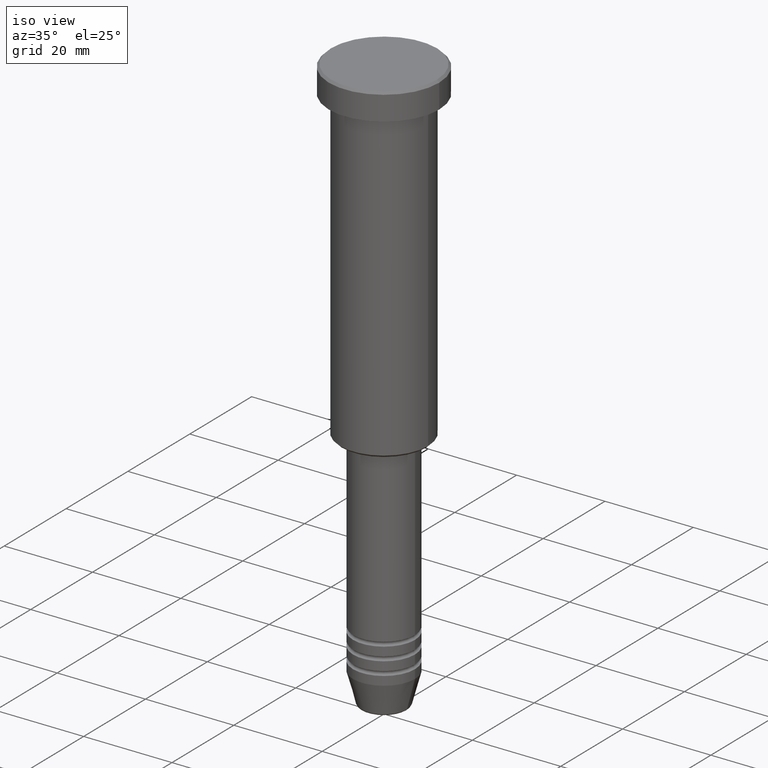
[diagram: clean part render]
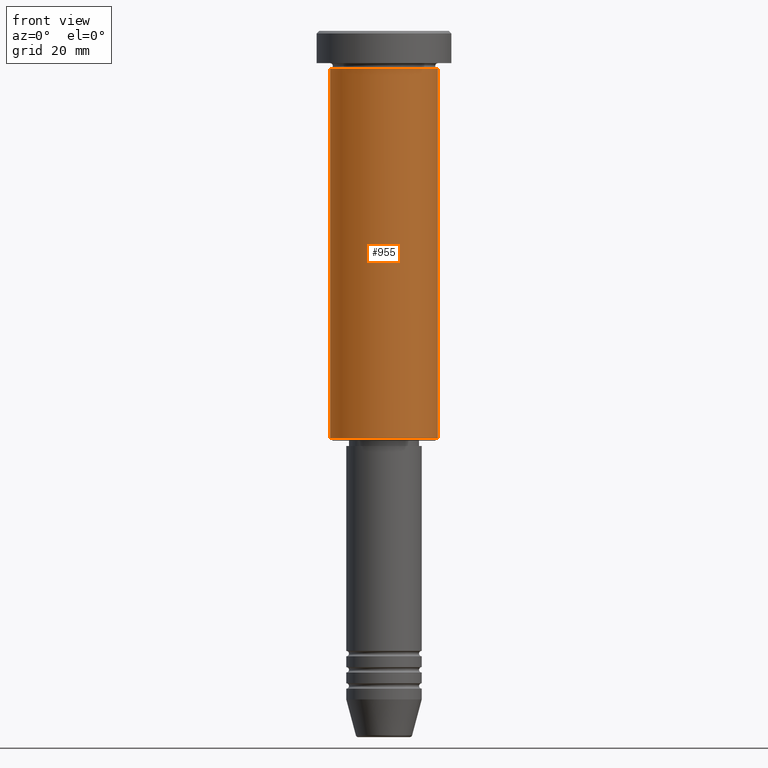
[diagram: tour spotlight — one face highlighted and labeled with its STEP entity id]
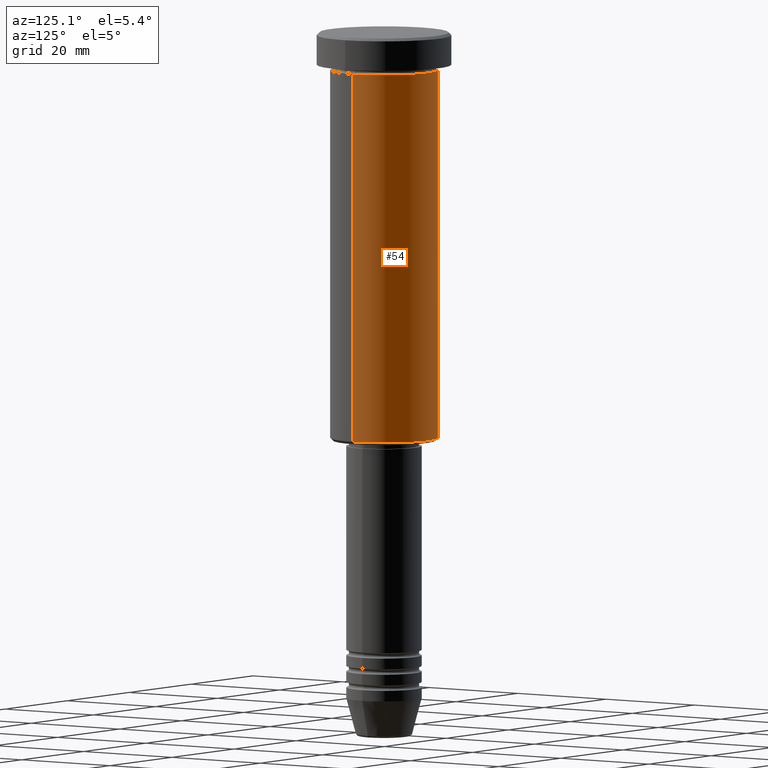
[diagram: tour spotlight — one face highlighted and labeled with its STEP entity id]
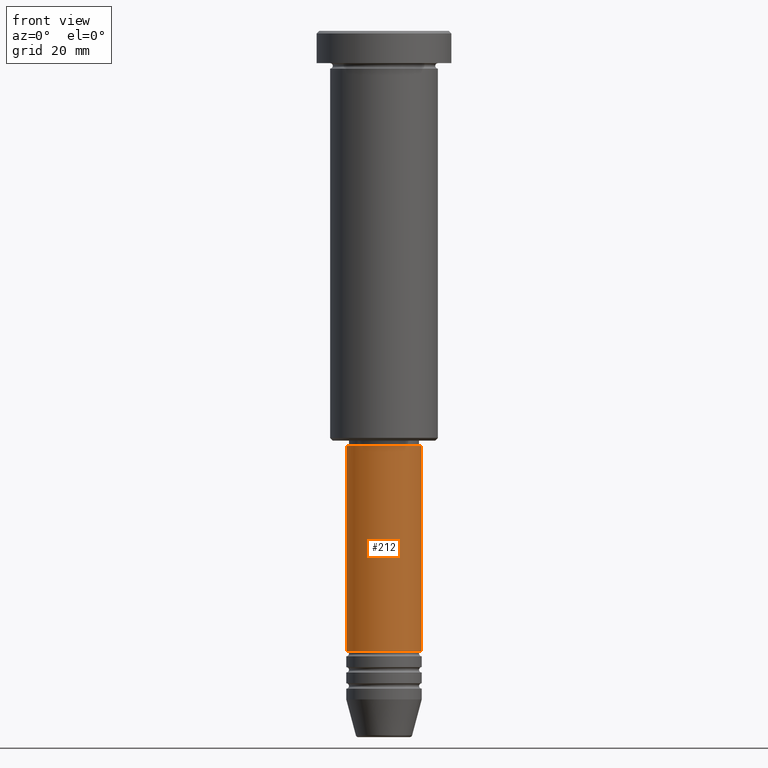
[diagram: tour spotlight — one face highlighted and labeled with its STEP entity id]
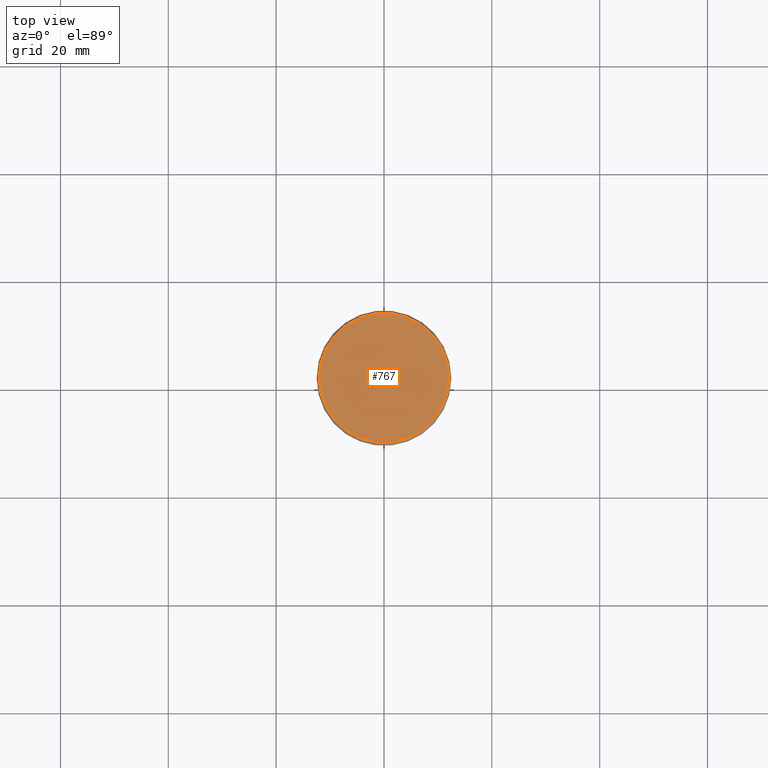
[diagram: tour spotlight — one face highlighted and labeled with its STEP entity id]
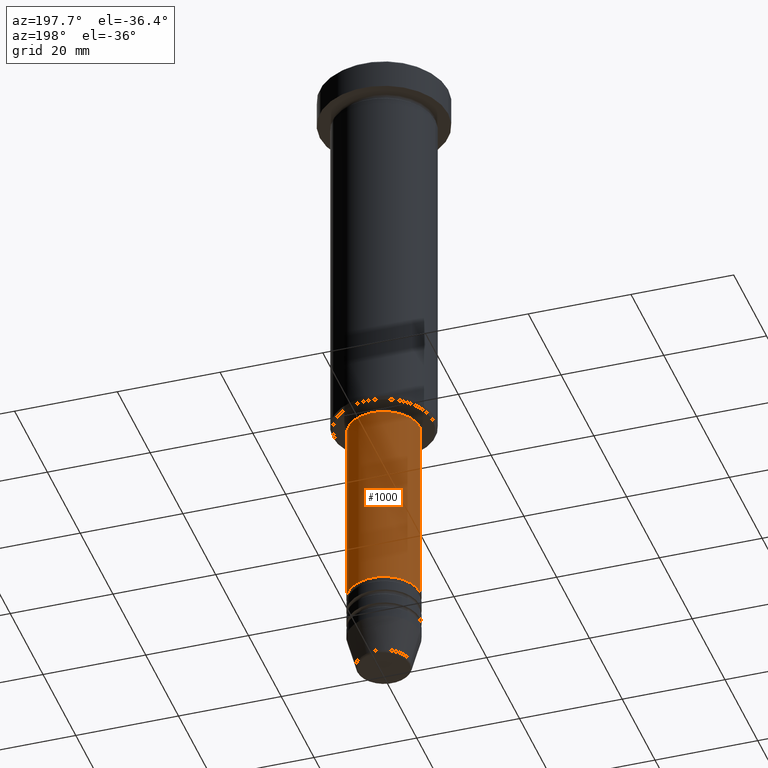
[diagram: tour spotlight — one face highlighted and labeled with its STEP entity id]
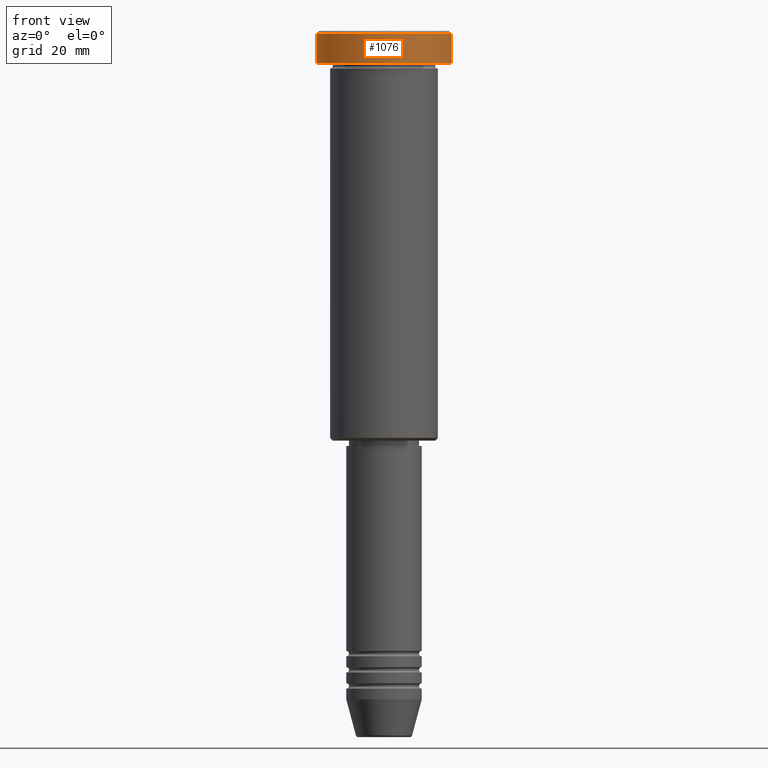
[diagram: tour spotlight — one face highlighted and labeled with its STEP entity id]
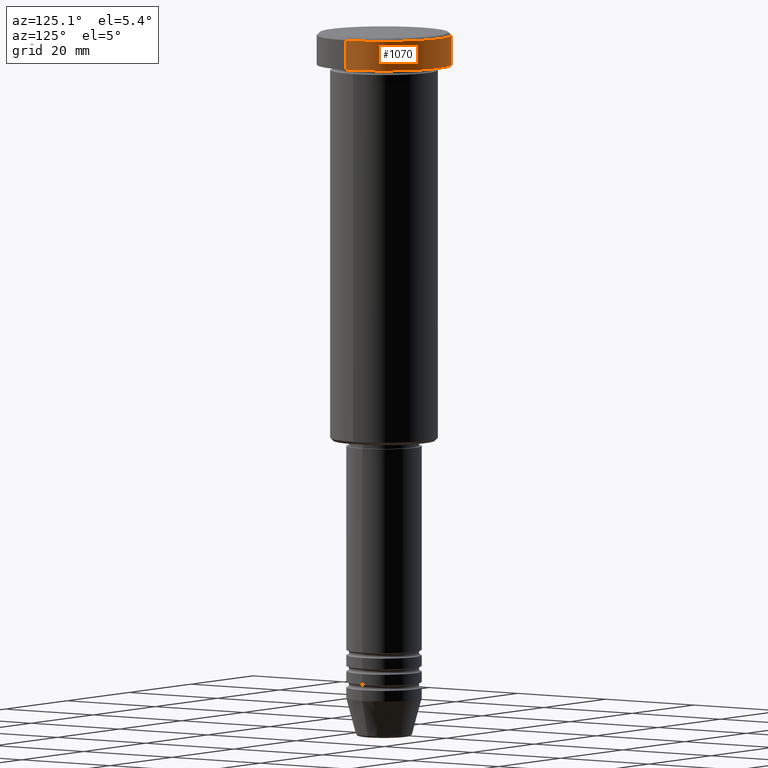
[diagram: tour spotlight — one face highlighted and labeled with its STEP entity id]
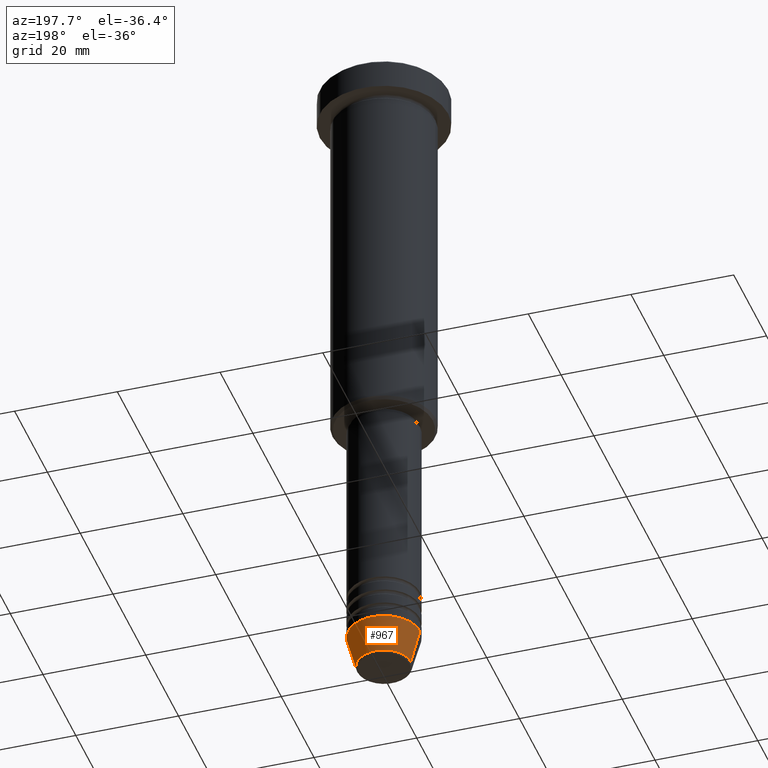
[diagram: tour spotlight — one face highlighted and labeled with its STEP entity id]
A machine part: a face-by-face anatomy tour. The part has 43 B-rep faces; the first image is the clean iso view, then the 8 largest visible faces are spotlighted one at a time (largest first), each with its STEP entity span.

Face 1 — front view, entity #955. In plain terms, the highlighted cylindrical surface (partial cylindrical patch) has radius 10 mm, axis along (-0, -0, 1).
Definition (entity closure, byte-faithful):
#13 = EDGE_CURVE ( 'NONE', #390, #304, #269, .T. ) ;
#82 = LINE ( 'NONE', #86, #206 ) ;
#86 = CARTESIAN_POINT ( 'NONE',  ( -10.00000000000000000, 1.224646799147353256E-15, 0.000000000000000000 ) ) ;
#104 = VERTEX_POINT ( 'NONE', #477 ) ;
#206 = VECTOR ( 'NONE', #803, 1000.000000000000000 ) ;
#241 = CARTESIAN_POINT ( 'NONE',  ( 0.000000000000000000, 0.000000000000000000, 0.000000000000000000 ) ) ;
#268 = FACE_OUTER_BOUND ( 'NONE', #326, .T. ) ;
#269 = LINE ( 'NONE', #1092, #634 ) ;
#275 = CARTESIAN_POINT ( 'NONE',  ( 0.000000000000000000, 0.000000000000000000, -6.999999999999996447 ) ) ;
#304 = VERTEX_POINT ( 'NONE', #1029 ) ;
#326 = EDGE_LOOP ( 'NONE', ( #339, #993, #755, #591 ) ) ;
#339 = ORIENTED_EDGE ( 'NONE', *, *, #881, .F. ) ;
#390 = VERTEX_POINT ( 'NONE', #426 ) ;
#426 = CARTESIAN_POINT ( 'NONE',  ( 10.00000000000000000, 0.000000000000000000, -75.50000000000000000 ) ) ;
#442 = EDGE_CURVE ( 'NONE', #1032, #390, #1009, .T. ) ;
#477 = CARTESIAN_POINT ( 'NONE',  ( -10.00000000000000000, 1.224646799147353256E-15, -6.999999999999996447 ) ) ;
#514 = CYLINDRICAL_SURFACE ( 'NONE', #653, 10.00000000000000000 ) ;
#562 = DIRECTION ( 'NONE',  ( -0.000000000000000000, -0.000000000000000000, 1.000000000000000000 ) ) ;
#591 = ORIENTED_EDGE ( 'NONE', *, *, #1096, .F. ) ;
#623 = DIRECTION ( 'NONE',  ( 1.000000000000000000, 0.000000000000000000, 0.000000000000000000 ) ) ;
#634 = VECTOR ( 'NONE', #637, 1000.000000000000000 ) ;
#637 = DIRECTION ( 'NONE',  ( -0.000000000000000000, -0.000000000000000000, 1.000000000000000000 ) ) ;
#653 = AXIS2_PLACEMENT_3D ( 'NONE', #241, #792, #623 ) ;
#755 = ORIENTED_EDGE ( 'NONE', *, *, #13, .T. ) ;
#773 = AXIS2_PLACEMENT_3D ( 'NONE', #877, #959, #779 ) ;
#779 = DIRECTION ( 'NONE',  ( -1.000000000000000000, 0.000000000000000000, 0.000000000000000000 ) ) ;
#792 = DIRECTION ( 'NONE',  ( -0.000000000000000000, -0.000000000000000000, 1.000000000000000000 ) ) ;
#803 = DIRECTION ( 'NONE',  ( -0.000000000000000000, -0.000000000000000000, 1.000000000000000000 ) ) ;
#877 = CARTESIAN_POINT ( 'NONE',  ( 0.000000000000000000, 0.000000000000000000, -75.50000000000000000 ) ) ;
#881 = EDGE_CURVE ( 'NONE', #1032, #104, #82, .T. ) ;
#930 = DIRECTION ( 'NONE',  ( 1.000000000000000000, 0.000000000000000000, 0.000000000000000000 ) ) ;
#955 = ADVANCED_FACE ( 'NONE', ( #268 ), #514, .T. ) ;
#959 = DIRECTION ( 'NONE',  ( -0.000000000000000000, -0.000000000000000000, 1.000000000000000000 ) ) ;
#993 = ORIENTED_EDGE ( 'NONE', *, *, #442, .T. ) ;
#1009 = CIRCLE ( 'NONE', #773, 10.00000000000000000 ) ;
#1013 = CARTESIAN_POINT ( 'NONE',  ( -10.00000000000000000, 1.224646799147353256E-15, -75.50000000000000000 ) ) ;
#1023 = AXIS2_PLACEMENT_3D ( 'NONE', #275, #562, #930 ) ;
#1029 = CARTESIAN_POINT ( 'NONE',  ( 10.00000000000000000, 0.000000000000000000, -6.999999999999996447 ) ) ;
#1032 = VERTEX_POINT ( 'NONE', #1013 ) ;
#1092 = CARTESIAN_POINT ( 'NONE',  ( 10.00000000000000000, 0.000000000000000000, 0.000000000000000000 ) ) ;
#1096 = EDGE_CURVE ( 'NONE', #104, #304, #1136, .T. ) ;
#1136 = CIRCLE ( 'NONE', #1023, 10.00000000000000000 ) ;

Face 2 — auxiliary view, entity #54. In plain terms, the highlighted cylindrical surface (partial cylindrical patch) has radius 10 mm, axis along (-0, -0, 1).
Definition (entity closure, byte-faithful):
#13 = EDGE_CURVE ( 'NONE', #390, #304, #269, .T. ) ;
#24 = CARTESIAN_POINT ( 'NONE',  ( 0.000000000000000000, 0.000000000000000000, 0.000000000000000000 ) ) ;
#54 = ADVANCED_FACE ( 'NONE', ( #288 ), #382, .T. ) ;
#82 = LINE ( 'NONE', #86, #206 ) ;
#86 = CARTESIAN_POINT ( 'NONE',  ( -10.00000000000000000, 1.224646799147353256E-15, 0.000000000000000000 ) ) ;
#104 = VERTEX_POINT ( 'NONE', #477 ) ;
#118 = CARTESIAN_POINT ( 'NONE',  ( 0.000000000000000000, 0.000000000000000000, -6.999999999999996447 ) ) ;
#166 = ORIENTED_EDGE ( 'NONE', *, *, #881, .T. ) ;
#206 = VECTOR ( 'NONE', #803, 1000.000000000000000 ) ;
#222 = CARTESIAN_POINT ( 'NONE',  ( 0.000000000000000000, 0.000000000000000000, -75.50000000000000000 ) ) ;
#269 = LINE ( 'NONE', #1092, #634 ) ;
#288 = FACE_OUTER_BOUND ( 'NONE', #509, .T. ) ;
#304 = VERTEX_POINT ( 'NONE', #1029 ) ;
#382 = CYLINDRICAL_SURFACE ( 'NONE', #753, 10.00000000000000000 ) ;
#390 = VERTEX_POINT ( 'NONE', #426 ) ;
#426 = CARTESIAN_POINT ( 'NONE',  ( 10.00000000000000000, 0.000000000000000000, -75.50000000000000000 ) ) ;
#474 = DIRECTION ( 'NONE',  ( -0.000000000000000000, -0.000000000000000000, 1.000000000000000000 ) ) ;
#477 = CARTESIAN_POINT ( 'NONE',  ( -10.00000000000000000, 1.224646799147353256E-15, -6.999999999999996447 ) ) ;
#482 = DIRECTION ( 'NONE',  ( -0.000000000000000000, -0.000000000000000000, 1.000000000000000000 ) ) ;
#490 = DIRECTION ( 'NONE',  ( -1.000000000000000000, 0.000000000000000000, 0.000000000000000000 ) ) ;
#502 = ORIENTED_EDGE ( 'NONE', *, *, #1165, .T. ) ;
#509 = EDGE_LOOP ( 'NONE', ( #502, #166, #568, #1014 ) ) ;
#568 = ORIENTED_EDGE ( 'NONE', *, *, #1106, .F. ) ;
#569 = DIRECTION ( 'NONE',  ( 1.000000000000000000, 0.000000000000000000, 0.000000000000000000 ) ) ;
#634 = VECTOR ( 'NONE', #637, 1000.000000000000000 ) ;
#637 = DIRECTION ( 'NONE',  ( -0.000000000000000000, -0.000000000000000000, 1.000000000000000000 ) ) ;
#752 = AXIS2_PLACEMENT_3D ( 'NONE', #222, #935, #490 ) ;
#753 = AXIS2_PLACEMENT_3D ( 'NONE', #24, #482, #569 ) ;
#803 = DIRECTION ( 'NONE',  ( -0.000000000000000000, -0.000000000000000000, 1.000000000000000000 ) ) ;
#836 = DIRECTION ( 'NONE',  ( 1.000000000000000000, 0.000000000000000000, 0.000000000000000000 ) ) ;
#881 = EDGE_CURVE ( 'NONE', #1032, #104, #82, .T. ) ;
#935 = DIRECTION ( 'NONE',  ( -0.000000000000000000, -0.000000000000000000, 1.000000000000000000 ) ) ;
#943 = AXIS2_PLACEMENT_3D ( 'NONE', #118, #474, #836 ) ;
#984 = CIRCLE ( 'NONE', #943, 10.00000000000000000 ) ;
#1013 = CARTESIAN_POINT ( 'NONE',  ( -10.00000000000000000, 1.224646799147353256E-15, -75.50000000000000000 ) ) ;
#1014 = ORIENTED_EDGE ( 'NONE', *, *, #13, .F. ) ;
#1029 = CARTESIAN_POINT ( 'NONE',  ( 10.00000000000000000, 0.000000000000000000, -6.999999999999996447 ) ) ;
#1032 = VERTEX_POINT ( 'NONE', #1013 ) ;
#1061 = CIRCLE ( 'NONE', #752, 10.00000000000000000 ) ;
#1092 = CARTESIAN_POINT ( 'NONE',  ( 10.00000000000000000, 0.000000000000000000, 0.000000000000000000 ) ) ;
#1106 = EDGE_CURVE ( 'NONE', #304, #104, #984, .T. ) ;
#1165 = EDGE_CURVE ( 'NONE', #390, #1032, #1061, .T. ) ;

Face 3 — front view, entity #212. In plain terms, the highlighted cylindrical surface (partial cylindrical patch) has radius 7 mm, axis along (-0, -0, 1).
Definition (entity closure, byte-faithful):
#16 = DIRECTION ( 'NONE',  ( 1.000000000000000000, 0.000000000000000000, 0.000000000000000000 ) ) ;
#21 = DIRECTION ( 'NONE',  ( -0.000000000000000000, -0.000000000000000000, 1.000000000000000000 ) ) ;
#37 = CARTESIAN_POINT ( 'NONE',  ( -7.000000000000000000, 8.572527594031473190E-16, -76.99999999999998579 ) ) ;
#52 = ORIENTED_EDGE ( 'NONE', *, *, #178, .T. ) ;
#84 = DIRECTION ( 'NONE',  ( -0.000000000000000000, -0.000000000000000000, 1.000000000000000000 ) ) ;
#93 = CIRCLE ( 'NONE', #1065, 7.000000000000000000 ) ;
#109 = FACE_OUTER_BOUND ( 'NONE', #517, .T. ) ;
#111 = CIRCLE ( 'NONE', #966, 7.000000000000000000 ) ;
#175 = LINE ( 'NONE', #609, #317 ) ;
#178 = EDGE_CURVE ( 'NONE', #1159, #625, #302, .T. ) ;
#191 = DIRECTION ( 'NONE',  ( -0.000000000000000000, -0.000000000000000000, 1.000000000000000000 ) ) ;
#212 = ADVANCED_FACE ( 'NONE', ( #109 ), #1016, .T. ) ;
#271 = DIRECTION ( 'NONE',  ( 1.000000000000000000, 0.000000000000000000, 0.000000000000000000 ) ) ;
#302 = LINE ( 'NONE', #920, #453 ) ;
#317 = VECTOR ( 'NONE', #84, 1000.000000000000000 ) ;
#453 = VECTOR ( 'NONE', #21, 1000.000000000000000 ) ;
#469 = CARTESIAN_POINT ( 'NONE',  ( 0.000000000000000000, 0.000000000000000000, 0.000000000000000000 ) ) ;
#488 = EDGE_CURVE ( 'NONE', #662, #1166, #175, .T. ) ;
#517 = EDGE_LOOP ( 'NONE', ( #1125, #816, #52, #958 ) ) ;
#545 = CARTESIAN_POINT ( 'NONE',  ( 0.000000000000000000, 0.000000000000000000, -114.9999999999999574 ) ) ;
#566 = CARTESIAN_POINT ( 'NONE',  ( 7.000000000000000000, 0.000000000000000000, -114.9999999999999574 ) ) ;
#609 = CARTESIAN_POINT ( 'NONE',  ( -7.000000000000000000, 8.572527594031473190E-16, 0.000000000000000000 ) ) ;
#625 = VERTEX_POINT ( 'NONE', #631 ) ;
#631 = CARTESIAN_POINT ( 'NONE',  ( 7.000000000000000000, 0.000000000000000000, -76.99999999999998579 ) ) ;
#662 = VERTEX_POINT ( 'NONE', #806 ) ;
#679 = EDGE_CURVE ( 'NONE', #1166, #625, #111, .T. ) ;
#685 = EDGE_CURVE ( 'NONE', #662, #1159, #93, .T. ) ;
#719 = CARTESIAN_POINT ( 'NONE',  ( 0.000000000000000000, 0.000000000000000000, -76.99999999999998579 ) ) ;
#802 = DIRECTION ( 'NONE',  ( 1.000000000000000000, 0.000000000000000000, 0.000000000000000000 ) ) ;
#806 = CARTESIAN_POINT ( 'NONE',  ( -7.000000000000000000, 8.572527594031473190E-16, -114.9999999999999574 ) ) ;
#816 = ORIENTED_EDGE ( 'NONE', *, *, #685, .T. ) ;
#831 = DIRECTION ( 'NONE',  ( -0.000000000000000000, -0.000000000000000000, 1.000000000000000000 ) ) ;
#898 = DIRECTION ( 'NONE',  ( -0.000000000000000000, -0.000000000000000000, 1.000000000000000000 ) ) ;
#920 = CARTESIAN_POINT ( 'NONE',  ( 7.000000000000000000, 0.000000000000000000, 0.000000000000000000 ) ) ;
#958 = ORIENTED_EDGE ( 'NONE', *, *, #679, .F. ) ;
#966 = AXIS2_PLACEMENT_3D ( 'NONE', #719, #191, #802 ) ;
#1016 = CYLINDRICAL_SURFACE ( 'NONE', #1137, 7.000000000000000000 ) ;
#1065 = AXIS2_PLACEMENT_3D ( 'NONE', #545, #898, #271 ) ;
#1125 = ORIENTED_EDGE ( 'NONE', *, *, #488, .F. ) ;
#1137 = AXIS2_PLACEMENT_3D ( 'NONE', #469, #831, #16 ) ;
#1159 = VERTEX_POINT ( 'NONE', #566 ) ;
#1166 = VERTEX_POINT ( 'NONE', #37 ) ;

Face 4 — top view, entity #767. In plain terms, the highlighted planar face has unit normal (0, -0, 1).
Definition (entity closure, byte-faithful):
#69 = AXIS2_PLACEMENT_3D ( 'NONE', #129, #852, #1115 ) ;
#129 = CARTESIAN_POINT ( 'NONE',  ( 0.000000000000000000, 0.000000000000000000, 0.000000000000000000 ) ) ;
#157 = CARTESIAN_POINT ( 'NONE',  ( 12.00000000000001066, 1.500192328955508326E-15, 0.000000000000000000 ) ) ;
#330 = ORIENTED_EDGE ( 'NONE', *, *, #1162, .T. ) ;
#385 = ORIENTED_EDGE ( 'NONE', *, *, #821, .T. ) ;
#402 = DIRECTION ( 'NONE',  ( 1.000000000000000000, 0.000000000000000000, 0.000000000000000000 ) ) ;
#407 = CARTESIAN_POINT ( 'NONE',  ( 0.000000000000000000, 0.000000000000000000, 0.000000000000000000 ) ) ;
#496 = PLANE ( 'NONE',  #749 ) ;
#521 = CIRCLE ( 'NONE', #69, 12.00000000000001066 ) ;
#598 = EDGE_LOOP ( 'NONE', ( #385, #330 ) ) ;
#665 = DIRECTION ( 'NONE',  ( -0.000000000000000000, -0.000000000000000000, 1.000000000000000000 ) ) ;
#749 = AXIS2_PLACEMENT_3D ( 'NONE', #859, #1040, #402 ) ;
#767 = ADVANCED_FACE ( 'NONE', ( #942 ), #496, .T. ) ;
#804 = VERTEX_POINT ( 'NONE', #1049 ) ;
#821 = EDGE_CURVE ( 'NONE', #804, #953, #1114, .T. ) ;
#852 = DIRECTION ( 'NONE',  ( -0.000000000000000000, -0.000000000000000000, 1.000000000000000000 ) ) ;
#859 = CARTESIAN_POINT ( 'NONE',  ( 0.000000000000000000, 0.000000000000000000, 0.000000000000000000 ) ) ;
#942 = FACE_OUTER_BOUND ( 'NONE', #598, .T. ) ;
#953 = VERTEX_POINT ( 'NONE', #157 ) ;
#1004 = AXIS2_PLACEMENT_3D ( 'NONE', #407, #665, #1035 ) ;
#1035 = DIRECTION ( 'NONE',  ( 1.000000000000000000, 0.000000000000000000, 0.000000000000000000 ) ) ;
#1040 = DIRECTION ( 'NONE',  ( 0.000000000000000000, -0.000000000000000000, 1.000000000000000000 ) ) ;
#1049 = CARTESIAN_POINT ( 'NONE',  ( -12.00000000000001066, 0.000000000000000000, 0.000000000000000000 ) ) ;
#1114 = CIRCLE ( 'NONE', #1004, 12.00000000000001066 ) ;
#1115 = DIRECTION ( 'NONE',  ( 1.000000000000000000, 0.000000000000000000, 0.000000000000000000 ) ) ;
#1162 = EDGE_CURVE ( 'NONE', #953, #804, #521, .T. ) ;

Face 5 — auxiliary view, entity #1000. In plain terms, the highlighted cylindrical surface (partial cylindrical patch) has radius 7 mm, axis along (-0, -0, 1).
Definition (entity closure, byte-faithful):
#9 = AXIS2_PLACEMENT_3D ( 'NONE', #386, #33, #465 ) ;
#21 = DIRECTION ( 'NONE',  ( -0.000000000000000000, -0.000000000000000000, 1.000000000000000000 ) ) ;
#25 = EDGE_CURVE ( 'NONE', #625, #1166, #1134, .T. ) ;
#33 = DIRECTION ( 'NONE',  ( -0.000000000000000000, -0.000000000000000000, 1.000000000000000000 ) ) ;
#37 = CARTESIAN_POINT ( 'NONE',  ( -7.000000000000000000, 8.572527594031473190E-16, -76.99999999999998579 ) ) ;
#83 = DIRECTION ( 'NONE',  ( -0.000000000000000000, -0.000000000000000000, 1.000000000000000000 ) ) ;
#84 = DIRECTION ( 'NONE',  ( -0.000000000000000000, -0.000000000000000000, 1.000000000000000000 ) ) ;
#102 = EDGE_CURVE ( 'NONE', #1159, #662, #732, .T. ) ;
#173 = CARTESIAN_POINT ( 'NONE',  ( 0.000000000000000000, 0.000000000000000000, -76.99999999999998579 ) ) ;
#175 = LINE ( 'NONE', #609, #317 ) ;
#178 = EDGE_CURVE ( 'NONE', #1159, #625, #302, .T. ) ;
#302 = LINE ( 'NONE', #920, #453 ) ;
#317 = VECTOR ( 'NONE', #84, 1000.000000000000000 ) ;
#380 = CYLINDRICAL_SURFACE ( 'NONE', #452, 7.000000000000000000 ) ;
#386 = CARTESIAN_POINT ( 'NONE',  ( 0.000000000000000000, 0.000000000000000000, -114.9999999999999574 ) ) ;
#446 = DIRECTION ( 'NONE',  ( 1.000000000000000000, 0.000000000000000000, 0.000000000000000000 ) ) ;
#452 = AXIS2_PLACEMENT_3D ( 'NONE', #738, #912, #471 ) ;
#453 = VECTOR ( 'NONE', #21, 1000.000000000000000 ) ;
#465 = DIRECTION ( 'NONE',  ( 1.000000000000000000, 0.000000000000000000, 0.000000000000000000 ) ) ;
#471 = DIRECTION ( 'NONE',  ( 1.000000000000000000, 0.000000000000000000, 0.000000000000000000 ) ) ;
#484 = EDGE_LOOP ( 'NONE', ( #918, #820, #766, #759 ) ) ;
#488 = EDGE_CURVE ( 'NONE', #662, #1166, #175, .T. ) ;
#566 = CARTESIAN_POINT ( 'NONE',  ( 7.000000000000000000, 0.000000000000000000, -114.9999999999999574 ) ) ;
#609 = CARTESIAN_POINT ( 'NONE',  ( -7.000000000000000000, 8.572527594031473190E-16, 0.000000000000000000 ) ) ;
#613 = AXIS2_PLACEMENT_3D ( 'NONE', #173, #83, #446 ) ;
#625 = VERTEX_POINT ( 'NONE', #631 ) ;
#631 = CARTESIAN_POINT ( 'NONE',  ( 7.000000000000000000, 0.000000000000000000, -76.99999999999998579 ) ) ;
#662 = VERTEX_POINT ( 'NONE', #806 ) ;
#732 = CIRCLE ( 'NONE', #9, 7.000000000000000000 ) ;
#738 = CARTESIAN_POINT ( 'NONE',  ( 0.000000000000000000, 0.000000000000000000, 0.000000000000000000 ) ) ;
#759 = ORIENTED_EDGE ( 'NONE', *, *, #178, .F. ) ;
#766 = ORIENTED_EDGE ( 'NONE', *, *, #25, .F. ) ;
#806 = CARTESIAN_POINT ( 'NONE',  ( -7.000000000000000000, 8.572527594031473190E-16, -114.9999999999999574 ) ) ;
#820 = ORIENTED_EDGE ( 'NONE', *, *, #488, .T. ) ;
#912 = DIRECTION ( 'NONE',  ( -0.000000000000000000, -0.000000000000000000, 1.000000000000000000 ) ) ;
#918 = ORIENTED_EDGE ( 'NONE', *, *, #102, .T. ) ;
#920 = CARTESIAN_POINT ( 'NONE',  ( 7.000000000000000000, 0.000000000000000000, 0.000000000000000000 ) ) ;
#1000 = ADVANCED_FACE ( 'NONE', ( #1105 ), #380, .T. ) ;
#1105 = FACE_OUTER_BOUND ( 'NONE', #484, .T. ) ;
#1134 = CIRCLE ( 'NONE', #613, 7.000000000000000000 ) ;
#1159 = VERTEX_POINT ( 'NONE', #566 ) ;
#1166 = VERTEX_POINT ( 'NONE', #37 ) ;

Face 6 — front view, entity #1076. In plain terms, the highlighted cylindrical surface (partial cylindrical patch) has radius 12.5 mm, axis along (-0, -0, 1).
Definition (entity closure, byte-faithful):
#42 = CARTESIAN_POINT ( 'NONE',  ( 12.50000000000000000, 0.000000000000000000, 0.000000000000000000 ) ) ;
#72 = CARTESIAN_POINT ( 'NONE',  ( 12.50000000000000000, 0.000000000000000000, -0.4999999999999917843 ) ) ;
#97 = CARTESIAN_POINT ( 'NONE',  ( -12.50000000000000000, 1.530808498934191521E-15, -0.4999999999999917843 ) ) ;
#114 = EDGE_CURVE ( 'NONE', #305, #689, #1108, .T. ) ;
#176 = DIRECTION ( 'NONE',  ( 1.000000000000000000, 0.000000000000000000, 0.000000000000000000 ) ) ;
#186 = CIRCLE ( 'NONE', #320, 12.50000000000000000 ) ;
#188 = FACE_OUTER_BOUND ( 'NONE', #708, .T. ) ;
#199 = CARTESIAN_POINT ( 'NONE',  ( 0.000000000000000000, 0.000000000000000000, 0.000000000000000000 ) ) ;
#234 = CARTESIAN_POINT ( 'NONE',  ( 0.000000000000000000, 0.000000000000000000, -5.999999999999996447 ) ) ;
#305 = VERTEX_POINT ( 'NONE', #940 ) ;
#320 = AXIS2_PLACEMENT_3D ( 'NONE', #234, #599, #1142 ) ;
#391 = DIRECTION ( 'NONE',  ( -0.000000000000000000, -0.000000000000000000, 1.000000000000000000 ) ) ;
#406 = EDGE_CURVE ( 'NONE', #305, #1141, #186, .T. ) ;
#412 = VECTOR ( 'NONE', #683, 1000.000000000000000 ) ;
#414 = VECTOR ( 'NONE', #391, 1000.000000000000000 ) ;
#418 = ORIENTED_EDGE ( 'NONE', *, *, #818, .T. ) ;
#501 = VERTEX_POINT ( 'NONE', #72 ) ;
#556 = CARTESIAN_POINT ( 'NONE',  ( -12.50000000000000000, 1.530808498934191521E-15, 0.000000000000000000 ) ) ;
#572 = CARTESIAN_POINT ( 'NONE',  ( 12.50000000000000000, 0.000000000000000000, -5.999999999999996447 ) ) ;
#599 = DIRECTION ( 'NONE',  ( -0.000000000000000000, -0.000000000000000000, 1.000000000000000000 ) ) ;
#616 = AXIS2_PLACEMENT_3D ( 'NONE', #1089, #996, #176 ) ;
#630 = ORIENTED_EDGE ( 'NONE', *, *, #114, .F. ) ;
#650 = EDGE_CURVE ( 'NONE', #501, #689, #1156, .T. ) ;
#683 = DIRECTION ( 'NONE',  ( -0.000000000000000000, -0.000000000000000000, 1.000000000000000000 ) ) ;
#689 = VERTEX_POINT ( 'NONE', #97 ) ;
#708 = EDGE_LOOP ( 'NONE', ( #630, #1103, #418, #1150 ) ) ;
#712 = AXIS2_PLACEMENT_3D ( 'NONE', #199, #907, #832 ) ;
#818 = EDGE_CURVE ( 'NONE', #1141, #501, #956, .T. ) ;
#832 = DIRECTION ( 'NONE',  ( 1.000000000000000000, 0.000000000000000000, 0.000000000000000000 ) ) ;
#907 = DIRECTION ( 'NONE',  ( -0.000000000000000000, -0.000000000000000000, 1.000000000000000000 ) ) ;
#940 = CARTESIAN_POINT ( 'NONE',  ( -12.50000000000000000, 1.530808498934191521E-15, -5.999999999999996447 ) ) ;
#956 = LINE ( 'NONE', #42, #412 ) ;
#996 = DIRECTION ( 'NONE',  ( 0.000000000000000000, 0.000000000000000000, -1.000000000000000000 ) ) ;
#1017 = CYLINDRICAL_SURFACE ( 'NONE', #712, 12.50000000000000000 ) ;
#1076 = ADVANCED_FACE ( 'NONE', ( #188 ), #1017, .T. ) ;
#1089 = CARTESIAN_POINT ( 'NONE',  ( 0.000000000000000000, 0.000000000000000000, -0.4999999999999917843 ) ) ;
#1103 = ORIENTED_EDGE ( 'NONE', *, *, #406, .T. ) ;
#1108 = LINE ( 'NONE', #556, #414 ) ;
#1141 = VERTEX_POINT ( 'NONE', #572 ) ;
#1142 = DIRECTION ( 'NONE',  ( 1.000000000000000000, 0.000000000000000000, 0.000000000000000000 ) ) ;
#1150 = ORIENTED_EDGE ( 'NONE', *, *, #650, .T. ) ;
#1156 = CIRCLE ( 'NONE', #616, 12.50000000000000000 ) ;

Face 7 — auxiliary view, entity #1070. In plain terms, the highlighted cylindrical surface (partial cylindrical patch) has radius 12.5 mm, axis along (-0, -0, 1).
Definition (entity closure, byte-faithful):
#42 = CARTESIAN_POINT ( 'NONE',  ( 12.50000000000000000, 0.000000000000000000, 0.000000000000000000 ) ) ;
#72 = CARTESIAN_POINT ( 'NONE',  ( 12.50000000000000000, 0.000000000000000000, -0.4999999999999917843 ) ) ;
#97 = CARTESIAN_POINT ( 'NONE',  ( -12.50000000000000000, 1.530808498934191521E-15, -0.4999999999999917843 ) ) ;
#114 = EDGE_CURVE ( 'NONE', #305, #689, #1108, .T. ) ;
#192 = CYLINDRICAL_SURFACE ( 'NONE', #576, 12.50000000000000000 ) ;
#246 = DIRECTION ( 'NONE',  ( 1.000000000000000000, 0.000000000000000000, 0.000000000000000000 ) ) ;
#305 = VERTEX_POINT ( 'NONE', #940 ) ;
#312 = EDGE_LOOP ( 'NONE', ( #1155, #321, #422, #829 ) ) ;
#313 = CARTESIAN_POINT ( 'NONE',  ( 0.000000000000000000, 0.000000000000000000, -5.999999999999996447 ) ) ;
#321 = ORIENTED_EDGE ( 'NONE', *, *, #114, .T. ) ;
#387 = EDGE_CURVE ( 'NONE', #1141, #305, #1101, .T. ) ;
#391 = DIRECTION ( 'NONE',  ( -0.000000000000000000, -0.000000000000000000, 1.000000000000000000 ) ) ;
#412 = VECTOR ( 'NONE', #683, 1000.000000000000000 ) ;
#414 = VECTOR ( 'NONE', #391, 1000.000000000000000 ) ;
#422 = ORIENTED_EDGE ( 'NONE', *, *, #648, .T. ) ;
#441 = DIRECTION ( 'NONE',  ( 1.000000000000000000, 0.000000000000000000, 0.000000000000000000 ) ) ;
#501 = VERTEX_POINT ( 'NONE', #72 ) ;
#539 = CARTESIAN_POINT ( 'NONE',  ( 0.000000000000000000, 0.000000000000000000, 0.000000000000000000 ) ) ;
#556 = CARTESIAN_POINT ( 'NONE',  ( -12.50000000000000000, 1.530808498934191521E-15, 0.000000000000000000 ) ) ;
#572 = CARTESIAN_POINT ( 'NONE',  ( 12.50000000000000000, 0.000000000000000000, -5.999999999999996447 ) ) ;
#576 = AXIS2_PLACEMENT_3D ( 'NONE', #539, #1090, #744 ) ;
#648 = EDGE_CURVE ( 'NONE', #689, #501, #1139, .T. ) ;
#674 = DIRECTION ( 'NONE',  ( -0.000000000000000000, -0.000000000000000000, 1.000000000000000000 ) ) ;
#683 = DIRECTION ( 'NONE',  ( -0.000000000000000000, -0.000000000000000000, 1.000000000000000000 ) ) ;
#689 = VERTEX_POINT ( 'NONE', #97 ) ;
#723 = DIRECTION ( 'NONE',  ( 0.000000000000000000, 0.000000000000000000, -1.000000000000000000 ) ) ;
#744 = DIRECTION ( 'NONE',  ( 1.000000000000000000, 0.000000000000000000, 0.000000000000000000 ) ) ;
#818 = EDGE_CURVE ( 'NONE', #1141, #501, #956, .T. ) ;
#829 = ORIENTED_EDGE ( 'NONE', *, *, #818, .F. ) ;
#908 = AXIS2_PLACEMENT_3D ( 'NONE', #1098, #723, #441 ) ;
#940 = CARTESIAN_POINT ( 'NONE',  ( -12.50000000000000000, 1.530808498934191521E-15, -5.999999999999996447 ) ) ;
#956 = LINE ( 'NONE', #42, #412 ) ;
#1070 = ADVANCED_FACE ( 'NONE', ( #1100 ), #192, .T. ) ;
#1083 = AXIS2_PLACEMENT_3D ( 'NONE', #313, #674, #246 ) ;
#1090 = DIRECTION ( 'NONE',  ( -0.000000000000000000, -0.000000000000000000, 1.000000000000000000 ) ) ;
#1098 = CARTESIAN_POINT ( 'NONE',  ( 0.000000000000000000, 0.000000000000000000, -0.4999999999999917843 ) ) ;
#1100 = FACE_OUTER_BOUND ( 'NONE', #312, .T. ) ;
#1101 = CIRCLE ( 'NONE', #1083, 12.50000000000000000 ) ;
#1108 = LINE ( 'NONE', #556, #414 ) ;
#1139 = CIRCLE ( 'NONE', #908, 12.50000000000000000 ) ;
#1141 = VERTEX_POINT ( 'NONE', #572 ) ;
#1155 = ORIENTED_EDGE ( 'NONE', *, *, #387, .T. ) ;

Face 8 — auxiliary view, entity #967. In plain terms, the highlighted conical surface has half-angle 15 deg.
Definition (entity closure, byte-faithful):
#35 = CARTESIAN_POINT ( 'NONE',  ( -5.223655072137191269, 7.484830028987061160E-16, -130.6294095225512422 ) ) ;
#44 = VERTEX_POINT ( 'NONE', #1180 ) ;
#90 = CONICAL_SURFACE ( 'NONE', #392, 7.000000000000000000, 0.2617993877991501295 ) ;
#137 = VERTEX_POINT ( 'NONE', #834 ) ;
#144 = EDGE_CURVE ( 'NONE', #44, #375, #296, .T. ) ;
#155 = ORIENTED_EDGE ( 'NONE', *, *, #144, .F. ) ;
#177 = FACE_OUTER_BOUND ( 'NONE', #253, .T. ) ;
#190 = EDGE_CURVE ( 'NONE', #137, #44, #756, .T. ) ;
#200 = ORIENTED_EDGE ( 'NONE', *, *, #190, .F. ) ;
#201 = DIRECTION ( 'NONE',  ( -0.000000000000000000, -0.000000000000000000, 1.000000000000000000 ) ) ;
#219 = VERTEX_POINT ( 'NONE', #35 ) ;
#236 = LINE ( 'NONE', #500, #981 ) ;
#253 = EDGE_LOOP ( 'NONE', ( #735, #299, #155, #200 ) ) ;
#296 = CIRCLE ( 'NONE', #713, 7.000000000000000000 ) ;
#299 = ORIENTED_EDGE ( 'NONE', *, *, #742, .T. ) ;
#318 = DIRECTION ( 'NONE',  ( -0.2588190451025214056, 3.169619151431772953E-17, 0.9659258262890680902 ) ) ;
#360 = AXIS2_PLACEMENT_3D ( 'NONE', #706, #536, #1074 ) ;
#375 = VERTEX_POINT ( 'NONE', #1132 ) ;
#392 = AXIS2_PLACEMENT_3D ( 'NONE', #522, #554, #549 ) ;
#467 = VECTOR ( 'NONE', #651, 1000.000000000000000 ) ;
#500 = CARTESIAN_POINT ( 'NONE',  ( -7.000000000000000000, 8.572527594031473190E-16, -124.0000000000000000 ) ) ;
#522 = CARTESIAN_POINT ( 'NONE',  ( 0.000000000000000000, 0.000000000000000000, -124.0000000000000000 ) ) ;
#536 = DIRECTION ( 'NONE',  ( -0.000000000000000000, -0.000000000000000000, 1.000000000000000000 ) ) ;
#549 = DIRECTION ( 'NONE',  ( 1.000000000000000000, 0.000000000000000000, 0.000000000000000000 ) ) ;
#554 = DIRECTION ( 'NONE',  ( -0.000000000000000000, -0.000000000000000000, 1.000000000000000000 ) ) ;
#651 = DIRECTION ( 'NONE',  ( 0.2588190451025214056, 0.000000000000000000, 0.9659258262890680902 ) ) ;
#706 = CARTESIAN_POINT ( 'NONE',  ( 0.000000000000000000, 0.000000000000000000, -130.6294095225512422 ) ) ;
#713 = AXIS2_PLACEMENT_3D ( 'NONE', #1112, #201, #830 ) ;
#735 = ORIENTED_EDGE ( 'NONE', *, *, #899, .T. ) ;
#742 = EDGE_CURVE ( 'NONE', #219, #375, #236, .T. ) ;
#756 = LINE ( 'NONE', #929, #467 ) ;
#830 = DIRECTION ( 'NONE',  ( 1.000000000000000000, 0.000000000000000000, 0.000000000000000000 ) ) ;
#834 = CARTESIAN_POINT ( 'NONE',  ( 5.223655072137191269, 0.000000000000000000, -130.6294095225512422 ) ) ;
#873 = CIRCLE ( 'NONE', #360, 5.223655072137191269 ) ;
#899 = EDGE_CURVE ( 'NONE', #137, #219, #873, .T. ) ;
#929 = CARTESIAN_POINT ( 'NONE',  ( 7.000000000000000000, 0.000000000000000000, -124.0000000000000000 ) ) ;
#967 = ADVANCED_FACE ( 'NONE', ( #177 ), #90, .T. ) ;
#981 = VECTOR ( 'NONE', #318, 1000.000000000000000 ) ;
#1074 = DIRECTION ( 'NONE',  ( 1.000000000000000000, 0.000000000000000000, 0.000000000000000000 ) ) ;
#1112 = CARTESIAN_POINT ( 'NONE',  ( 0.000000000000000000, 0.000000000000000000, -124.0000000000000000 ) ) ;
#1132 = CARTESIAN_POINT ( 'NONE',  ( -7.000000000000000000, 8.572527594031473190E-16, -124.0000000000000000 ) ) ;
#1180 = CARTESIAN_POINT ( 'NONE',  ( 7.000000000000000000, 0.000000000000000000, -124.0000000000000000 ) ) ;